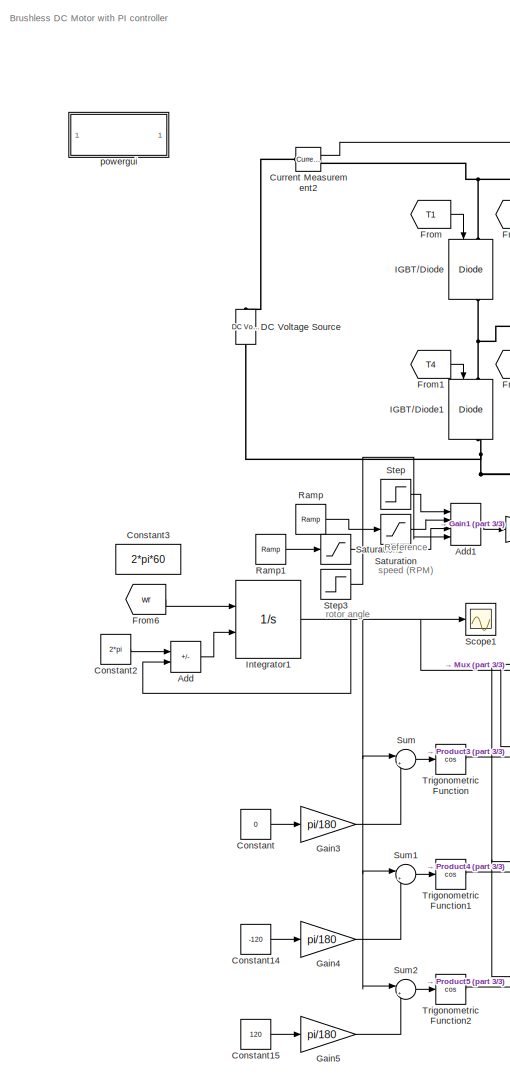
[diagram: root canvas - part 1/3, left side, full height]
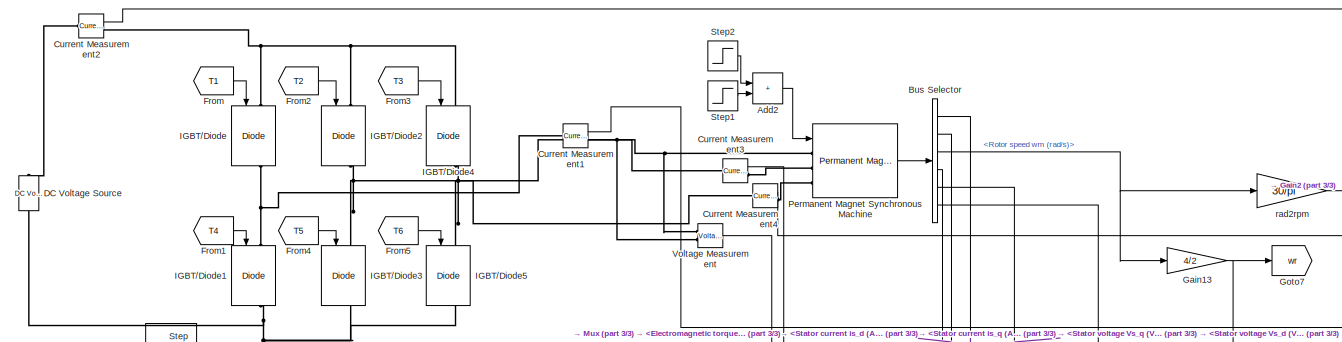
[diagram: root canvas - part 2/3, top center region]
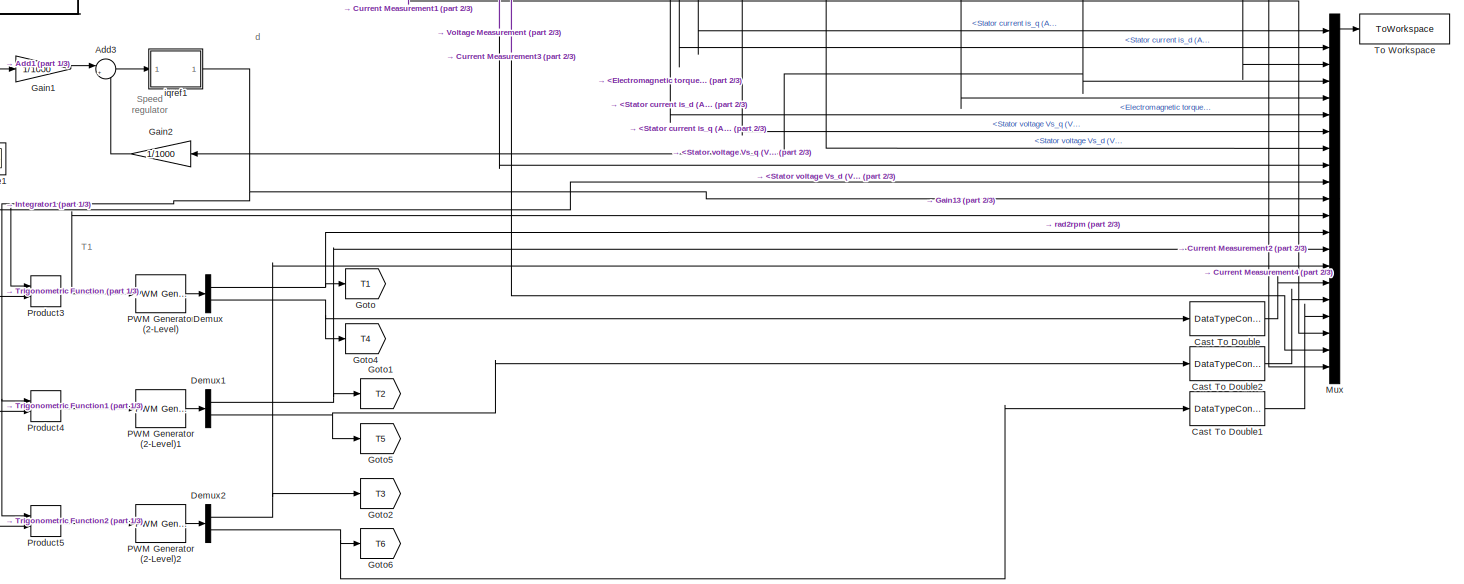
[diagram: root canvas - part 3/3, full width, bottom band]
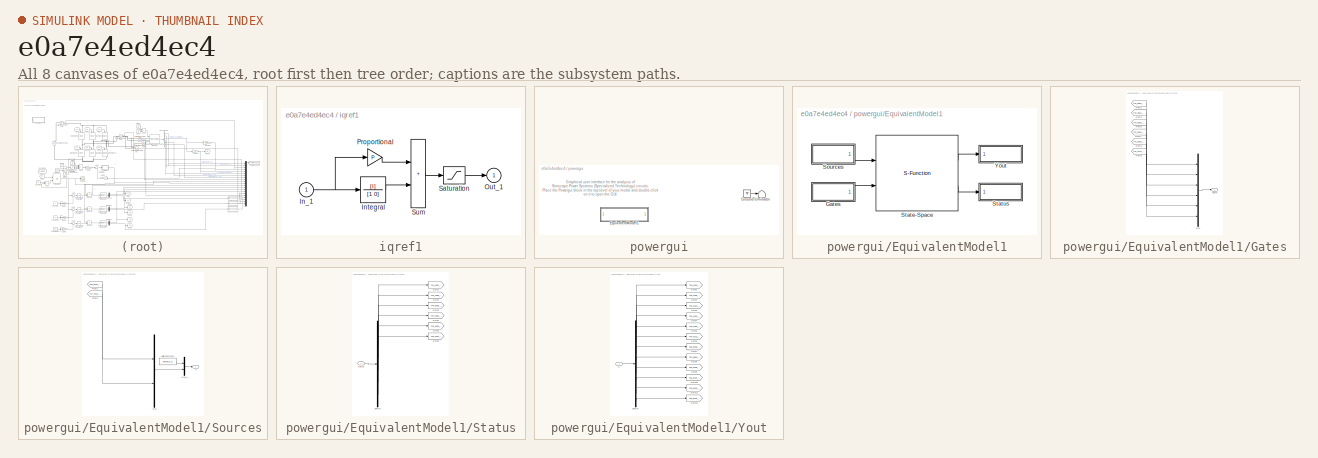
[diagram: thumbnail index - all 8 canvases of the model, root first then tree order]
MODEL slx_e0a7e4ed4ec4
KIND model
CONFIG AbsTol = 1e-6
CONFIG EnableMultiTasking = on
CONFIG FixedStep = 5e-6
CONFIG MaxStep = 1e-6
CONFIG MinStep = auto
CONFIG PreLoadFcn = assignin('base','Ts',[5e-6])
CONFIG RelTol = 1e-6
CONFIG SampleTimeConstraint = Unconstrained
CONFIG Solver = ode4
CONFIG SolverName = ode4
CONFIG StartTime = 0
CONFIG StopTime = 3.2
BLOCK [Sum] Add
  IconShape = rectangular
  Inputs = +-
  Ports = [2, 1]
BLOCK [Sum] Add1
  IconShape = rectangular
  Inputs = ++++
  Ports = [4, 1]
BLOCK [Sum] Add2
  IconShape = rectangular
  Ports = [2, 1]
BLOCK [Sum] Add3
  Inputs = |+-
  Ports = [2, 1]
BLOCK [BusSelector] Bus Selector
  OutputSignals = Stator current is_q (A),Stator current is_d (A),Rotor speed wm (rad/s),Electromagnetic torque Te (N*m),Stator voltage Vs_q (V),Stator voltage Vs_d (V)
  Ports = [1, 6]
BLOCK [DataTypeConversion] Cast To Double
  OutDataTypeStr = double
  RndMeth = Floor
  SaturateOnIntegerOverflow = off
BLOCK [DataTypeConversion] Cast To Double1
  OutDataTypeStr = double
  RndMeth = Floor
  SaturateOnIntegerOverflow = off
BLOCK [DataTypeConversion] Cast To Double2
  OutDataTypeStr = double
  RndMeth = Floor
  SaturateOnIntegerOverflow = off
BLOCK [Constant] Constant
  Value = 0
BLOCK [Constant] Constant14
  Value = -120
BLOCK [Constant] Constant15
  Value = 120
BLOCK [Constant] Constant2
  Value = 2*pi
BLOCK [Constant] Constant3
  Value = 2*pi*60
BLOCK [Reference] Current Measurement1  REF=powerlib/Measurements/Current Measurement
  Ports = [0, 1, 0, 0, 0, 1, 1]
  SourceBlock = powerlib/Measurements/Current Measurement
  SourceProductBaseCode = PS
  SourceType = Current Measurement
  UserDataPersistent = on
BLOCK [Reference] Current Measurement2  REF=powerlib/Measurements/Current Measurement
  Ports = [0, 1, 0, 0, 0, 1, 1]
  SourceBlock = powerlib/Measurements/Current Measurement
  SourceProductBaseCode = PS
  SourceType = Current Measurement
  UserDataPersistent = on
BLOCK [Reference] Current Measurement3  REF=powerlib/Measurements/Current Measurement
  Ports = [0, 1, 0, 0, 0, 1, 1]
  SourceBlock = powerlib/Measurements/Current Measurement
  SourceProductBaseCode = PS
  SourceType = Current Measurement
  UserDataPersistent = on
BLOCK [Reference] Current Measurement4  REF=powerlib/Measurements/Current Measurement
  Ports = [0, 1, 0, 0, 0, 1, 1]
  SourceBlock = powerlib/Measurements/Current Measurement
  SourceProductBaseCode = PS
  SourceType = Current Measurement
  UserDataPersistent = on
BLOCK [Reference] DC Voltage Source  REF=powerlib/Electrical
Sources/DC Voltage Source
  Ports = [0, 0, 0, 0, 0, 1, 1]
  SourceBlock = powerlib/Electrical\nSources/DC Voltage Source
  SourceProductBaseCode = PS
  SourceType = DC Voltage Source
BLOCK [Demux] Demux
  Outputs = 2
  Ports = [1, 2]
BLOCK [Demux] Demux1
  Outputs = 2
  Ports = [1, 2]
BLOCK [Demux] Demux2
  Outputs = 2
  Ports = [1, 2]
BLOCK [From] From
  GotoTag = T1
BLOCK [From] From1
  GotoTag = T4
BLOCK [From] From2
  GotoTag = T2
BLOCK [From] From3
  GotoTag = T3
BLOCK [From] From4
  GotoTag = T5
BLOCK [From] From5
  GotoTag = T6
BLOCK [From] From6
  GotoTag = wr
BLOCK [Gain] Gain1
  Gain = 1/1000
BLOCK [Gain] Gain13
  Gain = 4/2
BLOCK [Gain] Gain2
  Gain = 1/1000
BLOCK [Gain] Gain3
  Gain = pi/180
BLOCK [Gain] Gain4
  Gain = pi/180
BLOCK [Gain] Gain5
  Gain = pi/180
BLOCK [Goto] Goto
  GotoTag = T1
BLOCK [Goto] Goto1
  GotoTag = T2
BLOCK [Goto] Goto2
  GotoTag = T3
BLOCK [Goto] Goto4
  GotoTag = T4
BLOCK [Goto] Goto5
  GotoTag = T5
BLOCK [Goto] Goto6
  GotoTag = T6
BLOCK [Goto] Goto7
  GotoTag = wr
BLOCK [Reference] IGBT//Diode  REF=powerlib/Power
Electronics/IGBT//Diode
  Ports = [1, 1, 0, 0, 0, 1, 1]
  SourceBlock = powerlib/Power\nElectronics/IGBT//Diode
  SourceProductBaseCode = PS
  SourceType = IGBT/Diode
BLOCK [Reference] IGBT//Diode1  REF=powerlib/Power
Electronics/IGBT//Diode
  Ports = [1, 1, 0, 0, 0, 1, 1]
  SourceBlock = powerlib/Power\nElectronics/IGBT//Diode
  SourceProductBaseCode = PS
  SourceType = IGBT/Diode
BLOCK [Reference] IGBT//Diode2  REF=powerlib/Power
Electronics/IGBT//Diode
  Ports = [1, 1, 0, 0, 0, 1, 1]
  SourceBlock = powerlib/Power\nElectronics/IGBT//Diode
  SourceProductBaseCode = PS
  SourceType = IGBT/Diode
BLOCK [Reference] IGBT//Diode3  REF=powerlib/Power
Electronics/IGBT//Diode
  Ports = [1, 1, 0, 0, 0, 1, 1]
  SourceBlock = powerlib/Power\nElectronics/IGBT//Diode
  SourceProductBaseCode = PS
  SourceType = IGBT/Diode
BLOCK [Reference] IGBT//Diode4  REF=powerlib/Power
Electronics/IGBT//Diode
  Ports = [1, 1, 0, 0, 0, 1, 1]
  SourceBlock = powerlib/Power\nElectronics/IGBT//Diode
  SourceProductBaseCode = PS
  SourceType = IGBT/Diode
BLOCK [Reference] IGBT//Diode5  REF=powerlib/Power
Electronics/IGBT//Diode
  Ports = [1, 1, 0, 0, 0, 1, 1]
  SourceBlock = powerlib/Power\nElectronics/IGBT//Diode
  SourceProductBaseCode = PS
  SourceType = IGBT/Diode
BLOCK [Integrator] Integrator1
  ExternalReset = falling
  Ports = [2, 1]
BLOCK [Mux] Mux
  DisplayOption = bar
  Inputs = 21
  Ports = [21, 1]
BLOCK [Reference] PWM Generator (2-Level)  REF=powerlib_meascontrol/Pulse & Signal
Generators/PWM Generator
(2-Level)
  Ports = [1, 1]
  SourceBlock = powerlib_meascontrol/Pulse & Signal\nGenerators/PWM Generator\n(2-Level)
  SourceProductBaseCode = PS
  SourceType = PWM Generator (2-Level)
BLOCK [Reference] PWM Generator (2-Level)1  REF=powerlib_meascontrol/Pulse & Signal
Generators/PWM Generator
(2-Level)
  Ports = [1, 1]
  SourceBlock = powerlib_meascontrol/Pulse & Signal\nGenerators/PWM Generator\n(2-Level)
  SourceProductBaseCode = PS
  SourceType = PWM Generator (2-Level)
BLOCK [Reference] PWM Generator (2-Level)2  REF=powerlib_meascontrol/Pulse & Signal
Generators/PWM Generator
(2-Level)
  Ports = [1, 1]
  SourceBlock = powerlib_meascontrol/Pulse & Signal\nGenerators/PWM Generator\n(2-Level)
  SourceProductBaseCode = PS
  SourceType = PWM Generator (2-Level)
BLOCK [Reference] Permanent Magnet Synchronous Machine  REF=powerlib/Machines/Permanent Magnet
Synchronous Machine
  Ports = [1, 1, 0, 0, 0, 3]
  SourceBlock = powerlib/Machines/Permanent Magnet\nSynchronous Machine
  SourceProductBaseCode = PS
  SourceType = Permanent Magnet Synchronous Machine
BLOCK [Product] Product3
  Ports = [2, 1]
BLOCK [Product] Product4
  Ports = [2, 1]
BLOCK [Product] Product5
  Ports = [2, 1]
BLOCK [Reference] Ramp  REF=simulink/Sources/Ramp
  Ports = [0, 1]
  SourceBlock = simulink/Sources/Ramp
  SourceProductBaseCode = SL
  SourceType = Ramp
BLOCK [Reference] Ramp1  REF=simulink/Sources/Ramp
  Ports = [0, 1]
  SourceBlock = simulink/Sources/Ramp
  SourceProductBaseCode = SL
  SourceType = Ramp
BLOCK [Saturate] Saturation
  LowerLimit = 0
  UpperLimit = 400
BLOCK [Saturate] Saturation1
  LowerLimit = -461.5
  UpperLimit = 0
BLOCK [Scope] Scope1
  Floating = off
  NumInputPorts = 1
  Ports = [1]
  ScopeSpecificationString = Simulink.scopes.TimeScopeBlockCfg('CurrentConfiguration', extmgr.ConfigurationSet(extmgr.Configuration('Core','General UI',true),extmgr.Configuration('Core','Source UI',true),extmgr.Configuration('Sources','WiredSimulink',true,'DataLoggingVariableName','ScopeData1'),extmgr.Configuration('Visuals','Time Domain',true,'SerializedDisplays',{struct('MinYLimReal','-0.78508','MaxYLimReal','7.06576','YLab...<+1418ch>
BLOCK [Step] Step
  After = 200
  SampleTime = 0
  Time = 1.8
BLOCK [Step] Step1
  After = -2
  SampleTime = 0
  Time = 2.3
BLOCK [Step] Step2
  Before = .5
  SampleTime = 0
  Time = 1.3
BLOCK [Step] Step3
  After = -138.5
  SampleTime = 0
  Time = 4.223
BLOCK [Sum] Sum
  Inputs = |++
  Ports = [2, 1]
BLOCK [Sum] Sum1
  Inputs = |++
  Ports = [2, 1]
BLOCK [Sum] Sum2
  Inputs = |++
  Ports = [2, 1]
BLOCK [ToWorkspace] To Workspace
  FixptAsFi = on
  MaxDataPoints = inf
  Ports = [1]
  SampleTime = -1
  SaveFormat = Timeseries
  VariableName = simout
BLOCK [Trigonometry] Trigonometric Function
  Operator = cos
  Ports = [1, 1]
BLOCK [Trigonometry] Trigonometric Function1
  Operator = cos
  Ports = [1, 1]
BLOCK [Trigonometry] Trigonometric Function2
  Operator = cos
  Ports = [1, 1]
BLOCK [Reference] Voltage Measurement  REF=powerlib/Measurements/Voltage Measurement
  Ports = [0, 1, 0, 0, 0, 2]
  SourceBlock = powerlib/Measurements/Voltage Measurement
  SourceProductBaseCode = PS
  SourceType = Voltage Measurement
BLOCK [SubSystem] iqref1
  Ports = [1, 1]
  RequestExecContextInheritance = off
BLOCK [Inport] iqref1/In_1
BLOCK [TransferFcn] iqref1/Integral
  Denominator = [1 0]
  Numerator = [I]
BLOCK [Outport] iqref1/Out_1
  InitialOutput = 0
  VectorParamsAs1DForOutWhenUnconnected = off
BLOCK [Gain] iqref1/Proportional
  Gain = P
  OutDataTypeStr = Inherit: Same as input
  ParamDataTypeStr = Inherit: Same as input
  SaturateOnIntegerOverflow = on
BLOCK [Saturate] iqref1/Saturation
  LowerLimit = min
  UpperLimit = max
BLOCK [Sum] iqref1/Sum
  IconShape = rectangular
  InputSameDT = on
  OutDataTypeStr = Inherit: Same as first input
  Ports = [2, 1]
  SaturateOnIntegerOverflow = on
BLOCK [SubSystem] powergui
  AncestorBlock = powerlib/powergui
  DialogController = POWERSYS.PowerSysDialog
  InitFcn = powergui( 'InitFcn_Callback' , gcb , 0 , [ ] );
  OpenFcn = sps_rtmsupport('OpenFcn',gcbh)
  Ports = []
  PreSaveFcn = powergui( 'PreSaveFcn_Callback' , gcb , [ ] , [ ] );
  Priority = 2
  RequestExecContextInheritance = off
BLOCK [SubSystem] powergui/EquivalentModel1
  Ports = []
  RequestExecContextInheritance = off
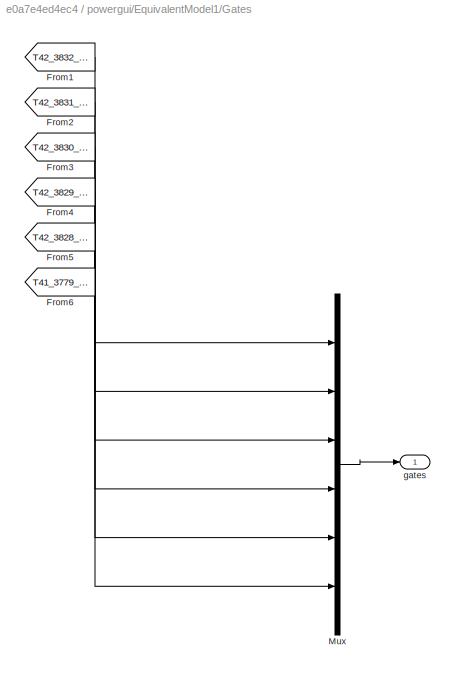
BLOCK [SubSystem] powergui/EquivalentModel1/Gates
  Ports = [0, 1]
  RequestExecContextInheritance = off
BLOCK [From] powergui/EquivalentModel1/Gates/From1
  GotoTag = T42_3832_2417218406411
  TagVisibility = global
BLOCK [From] powergui/EquivalentModel1/Gates/From2
  GotoTag = T42_3831_2417002695726
  TagVisibility = global
BLOCK [From] powergui/EquivalentModel1/Gates/From3
  GotoTag = T42_3830_2416895786945
  TagVisibility = global
BLOCK [From] powergui/EquivalentModel1/Gates/From4
  GotoTag = T42_3829_2416897680070
  TagVisibility = global
BLOCK [From] powergui/EquivalentModel1/Gates/From5
  GotoTag = T42_3828_2417008375099
  TagVisibility = global
BLOCK [From] powergui/EquivalentModel1/Gates/From6
  GotoTag = T41_3779_2395767570512
  TagVisibility = global
BLOCK [Mux] powergui/EquivalentModel1/Gates/Mux
  DisplayOption = bar
  Inputs = [1 1 1 1 1 1]
  Ports = [6, 1]
BLOCK [Outport] powergui/EquivalentModel1/Gates/gates
  VectorParamsAs1DForOutWhenUnconnected = off
BLOCK [SubSystem] powergui/EquivalentModel1/Sources
  Ports = [0, 1]
  RequestExecContextInheritance = off
BLOCK [From] powergui/EquivalentModel1/Sources/From1
  GotoTag = T66_6410_7337039370193
  TagVisibility = global
BLOCK [From] powergui/EquivalentModel1/Sources/From2
  GotoTag = T47_4452_3638026949491
  TagVisibility = global
BLOCK [Mux] powergui/EquivalentModel1/Sources/Mux
  DisplayOption = bar
  Inputs = [2 1]
  Ports = [2, 1]
BLOCK [Mux] powergui/EquivalentModel1/Sources/Mux_u
  DisplayOption = bar
  Inputs = [6 3]
  Ports = [2, 1]
BLOCK [Constant] powergui/EquivalentModel1/Sources/SwitchCurrents
  Value = zeros(6,1)
BLOCK [Outport] powergui/EquivalentModel1/Sources/u
  VectorParamsAs1DForOutWhenUnconnected = off
BLOCK [S-Function] powergui/EquivalentModel1/State-Space
  EnableBusSupport = off
  FunctionName = sfun_spssw_discc
  Parameters = S.Ts,S.A, S.B, S.C, S.D, S.x0, S.EnableUseOfTLC,S.SwitchResistance ,S.SwitchType, S.SwitchGateInitialValue, S.OutputsToResetToZero, S.TBEON,S.SaveMatrices,S.BufferSize
  Ports = [2, 2]
  SFcnIsStateOwnerBlock = off
  SFunctionDeploymentMode = off
BLOCK [SubSystem] powergui/EquivalentModel1/Status
  Ports = [1]
  RequestExecContextInheritance = off
BLOCK [Demux] powergui/EquivalentModel1/Status/Demux
  Outputs = [1 1 1 1 1 1]
  Ports = [1, 6]
BLOCK [Goto] powergui/EquivalentModel1/Status/Goto1
  GotoTag = T44_4067_3031287911136
  TagVisibility = global
BLOCK [Goto] powergui/EquivalentModel1/Status/Goto2
  GotoTag = T44_4066_3031503769064
  TagVisibility = global
BLOCK [Goto] powergui/EquivalentModel1/Status/Goto3
  GotoTag = T44_4065_3031823483356
  TagVisibility = global
BLOCK [Goto] powergui/EquivalentModel1/Status/Goto4
  GotoTag = T44_4064_3032247054012
  TagVisibility = global
BLOCK [Goto] powergui/EquivalentModel1/Status/Goto5
  GotoTag = T44_4063_3032774481031
  TagVisibility = global
BLOCK [Goto] powergui/EquivalentModel1/Status/Goto6
  GotoTag = T43_4014_2976314139635
  TagVisibility = global
BLOCK [Inport] powergui/EquivalentModel1/Status/status
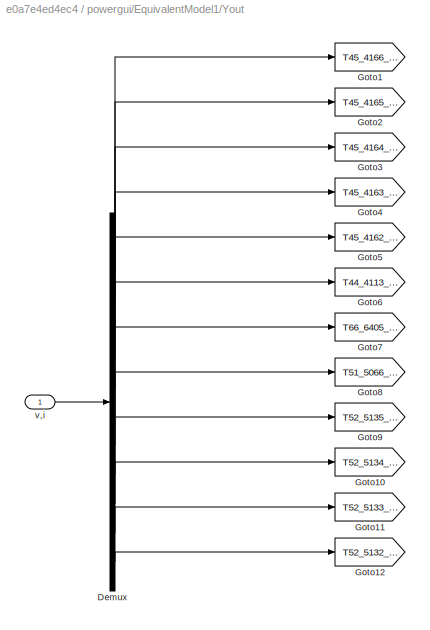
BLOCK [SubSystem] powergui/EquivalentModel1/Yout
  Ports = [1]
  RequestExecContextInheritance = off
BLOCK [Demux] powergui/EquivalentModel1/Yout/Demux
  Outputs = [1 1 1 1 1 1 2 1 1 1 1 1]
  Ports = [1, 12]
BLOCK [Goto] powergui/EquivalentModel1/Yout/Goto1
  GotoTag = T45_4166_3146163109545
  TagVisibility = global
BLOCK [Goto] powergui/EquivalentModel1/Yout/Goto10
  GotoTag = T52_5134_4738837528397
  TagVisibility = global
BLOCK [Goto] powergui/EquivalentModel1/Yout/Goto11
  GotoTag = T52_5133_4739820985502
  TagVisibility = global
BLOCK [Goto] powergui/EquivalentModel1/Yout/Goto12
  GotoTag = T52_5132_4740934721067
  TagVisibility = global
BLOCK [Goto] powergui/EquivalentModel1/Yout/Goto2
  GotoTag = T45_4165_3146523642253
  TagVisibility = global
BLOCK [Goto] powergui/EquivalentModel1/Yout/Goto3
  GotoTag = T45_4164_3146985723404
  TagVisibility = global
BLOCK [Goto] powergui/EquivalentModel1/Yout/Goto4
  GotoTag = T45_4163_3147549353000
  TagVisibility = global
BLOCK [Goto] powergui/EquivalentModel1/Yout/Goto5
  GotoTag = T45_4162_3148214531040
  TagVisibility = global
BLOCK [Goto] powergui/EquivalentModel1/Yout/Goto6
  GotoTag = T44_4113_3080970920439
  TagVisibility = global
BLOCK [Goto] powergui/EquivalentModel1/Yout/Goto7
  GotoTag = T66_6405_7275162470434
  TagVisibility = global
BLOCK [Goto] powergui/EquivalentModel1/Yout/Goto8
  GotoTag = T51_5066_4640400504667
  TagVisibility = global
BLOCK [Goto] powergui/EquivalentModel1/Yout/Goto9
  GotoTag = T52_5135_4737984349755
  TagVisibility = global
BLOCK [Inport] powergui/EquivalentModel1/Yout/v,i
BLOCK [Ground] powergui/Ground
BLOCK [Terminator] powergui/Terminator
BLOCK [Gain] rad2rpm
  Gain = 30/pi
ANNOTATION (root): Brushless DC Motor with PI controller
ANNOTATION (root): Reference speed (RPM)
ANNOTATION (root): Speed regulator
ANNOTATION (root): T1
ANNOTATION (root): d
ANNOTATION (root): rotor angle
ANNOTATION powergui: Graphical user interface for the analysis of Simscape Power Systems (Specialized Technology) circuits. Place the Powergui block in the top-level of your model and double-click on it to open the GUI.
LINE Add1:1 -> Gain1:1
LINE Add2:1 -> Permanent Magnet Synchronous Machine:1
LINE Add3:1 -> iqref1:1
LINE Add:1 -> Integrator1:2
LINE Bus Selector:1 -> Mux:1
LINE Bus Selector:2 -> Mux:2
NET Bus Selector:3 -> Gain13:1, rad2rpm:1
LINE Bus Selector:4 -> Mux:6
LINE Bus Selector:5 -> Mux:7
LINE Bus Selector:6 -> Mux:8
LINE Cast To Double1:1 -> Mux:18
LINE Cast To Double2:1 -> Mux:17
LINE Cast To Double:1 -> Mux:16
LINE Constant14:1 -> Gain4:1
LINE Constant15:1 -> Gain5:1
LINE Constant2:1 -> Add:1
LINE Constant:1 -> Gain3:1
LINE Current Measurement1:1 -> Mux:19
LINE Current Measurement2:1 -> Mux:3
LINE Current Measurement3:1 -> Mux:20
LINE Current Measurement4:1 -> Mux:21
NET Demux1:1 -> Goto1:1, Mux:14
NET Demux1:2 -> Cast To Double2:1, Goto5:1
NET Demux2:1 -> Goto2:1, Mux:15
NET Demux2:2 -> Cast To Double1:1, Goto6:1
NET Demux:1 -> Goto:1, Mux:13
NET Demux:2 -> Cast To Double:1, Goto4:1
LINE From1:1 -> IGBT//Diode1:1
LINE From2:1 -> IGBT//Diode2:1
LINE From3:1 -> IGBT//Diode4:1
LINE From4:1 -> IGBT//Diode3:1
LINE From5:1 -> IGBT//Diode5:1
LINE From6:1 -> Integrator1:1
LINE From:1 -> IGBT//Diode:1
NET Gain13:1 -> Goto7:1, Mux:5
LINE Gain1:1 -> Add3:1
LINE Gain2:1 -> Add3:2
LINE Gain3:1 -> Sum:2
LINE Gain4:1 -> Sum1:2
LINE Gain5:1 -> Sum2:2
NET Integrator1:1 -> Add:2, Mux:10, Scope1:1, Sum1:1, Sum2:1, Sum:1
LINE Mux:1 -> To Workspace:1
LINE PWM Generator (2-Level)1:1 -> Demux1:1
LINE PWM Generator (2-Level)2:1 -> Demux2:1
LINE PWM Generator (2-Level):1 -> Demux:1
LINE Permanent Magnet Synchronous Machine:1 -> Bus Selector:1
NET Product3:1 -> Mux:12, PWM Generator (2-Level):1
LINE Product4:1 -> PWM Generator (2-Level)1:1
LINE Product5:1 -> PWM Generator (2-Level)2:1
LINE Ramp1:1 -> Saturation1:1
LINE Ramp:1 -> Saturation:1
LINE Saturation1:1 -> Add1:3
LINE Saturation:1 -> Add1:2
LINE Step1:1 -> Add2:2
LINE Step2:1 -> Add2:1
LINE Step3:1 -> Add1:4
LINE Step:1 -> Add1:1
LINE Sum1:1 -> Trigonometric Function1:1
LINE Sum2:1 -> Trigonometric Function2:1
LINE Sum:1 -> Trigonometric Function:1
LINE Trigonometric Function1:1 -> Product4:2
LINE Trigonometric Function2:1 -> Product5:2
LINE Trigonometric Function:1 -> Product3:2
LINE Voltage Measurement:1 -> Mux:9
NET iqref1/In_1:1 -> iqref1/Integral:1, iqref1/Proportional:1
LINE iqref1/Integral:1 -> iqref1/Sum:2
LINE iqref1/Proportional:1 -> iqref1/Sum:1
LINE iqref1/Saturation:1 -> iqref1/Out_1:1
LINE iqref1/Sum:1 -> iqref1/Saturation:1
NET iqref1:1 -> Mux:11, Product3:1, Product4:1, Product5:1
NET rad2rpm:1 -> Gain2:1, Mux:4
PNET net1: Current Measurement1:LConn1 -- IGBT//Diode1:LConn1 -- IGBT//Diode:RConn1
PNET net2: Current Measurement1:RConn1 -- Permanent Magnet Synchronous Machine:LConn1 -- Voltage Measurement:LConn1
PLINE Current Measurement2:LConn1 -- DC Voltage Source:RConn1
PNET net3: Current Measurement2:RConn1 -- IGBT//Diode2:LConn1 -- IGBT//Diode4:LConn1 -- IGBT//Diode:LConn1
PNET net4: Current Measurement3:LConn1 -- IGBT//Diode2:RConn1 -- IGBT//Diode3:LConn1 -- Voltage Measurement:LConn2
PLINE Current Measurement3:RConn1 -- Permanent Magnet Synchronous Machine:LConn2
PNET net5: Current Measurement4:LConn1 -- IGBT//Diode4:RConn1 -- IGBT//Diode5:LConn1
PLINE Current Measurement4:RConn1 -- Permanent Magnet Synchronous Machine:LConn3
PNET net6: DC Voltage Source:LConn1 -- IGBT//Diode1:RConn1 -- IGBT//Diode3:RConn1 -- IGBT//Diode5:RConn1
note: NET lines group one-source signal fan-out (src -> all destinations, sorted); 1:1 wires keep LINE; PNET lines group multi-terminal physical nets as a canonical sorted terminal list (undirected conserving connections); 2-terminal nets keep the pairwise PLINE form
